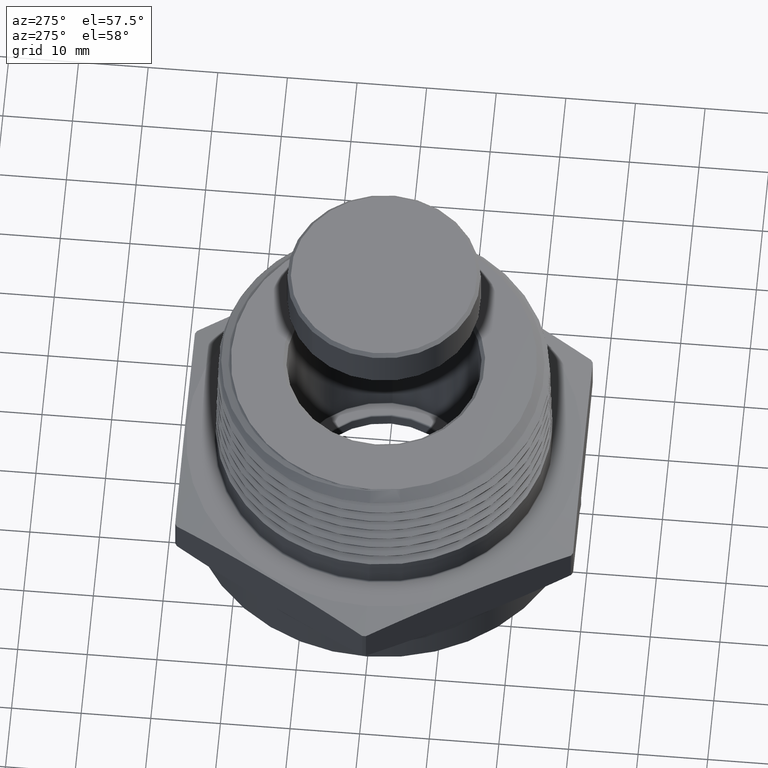
[diagram: clean part render]
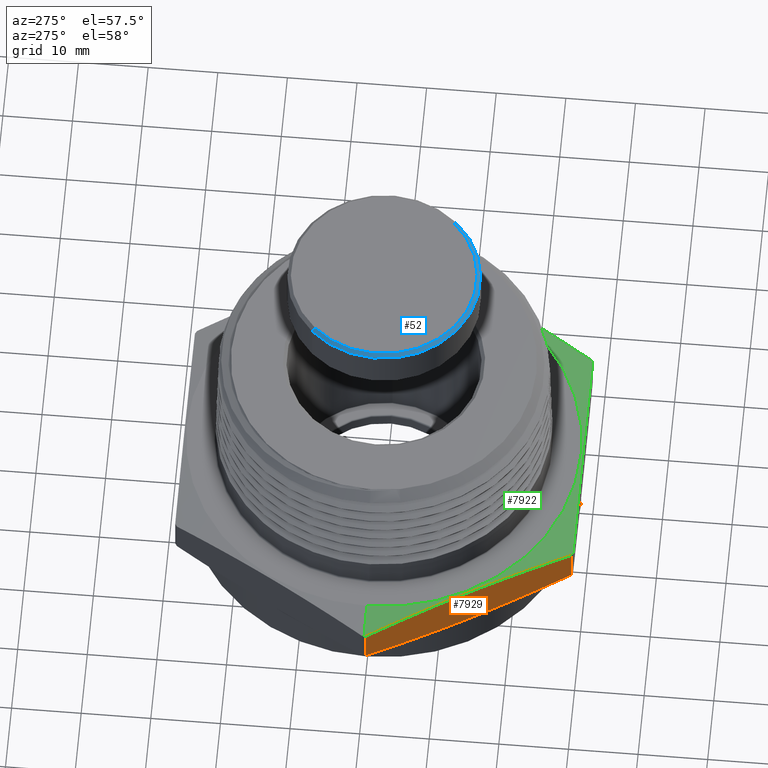
[diagram: same view with three faces highlighted in distinct colors, each labeled with its STEP entity id]
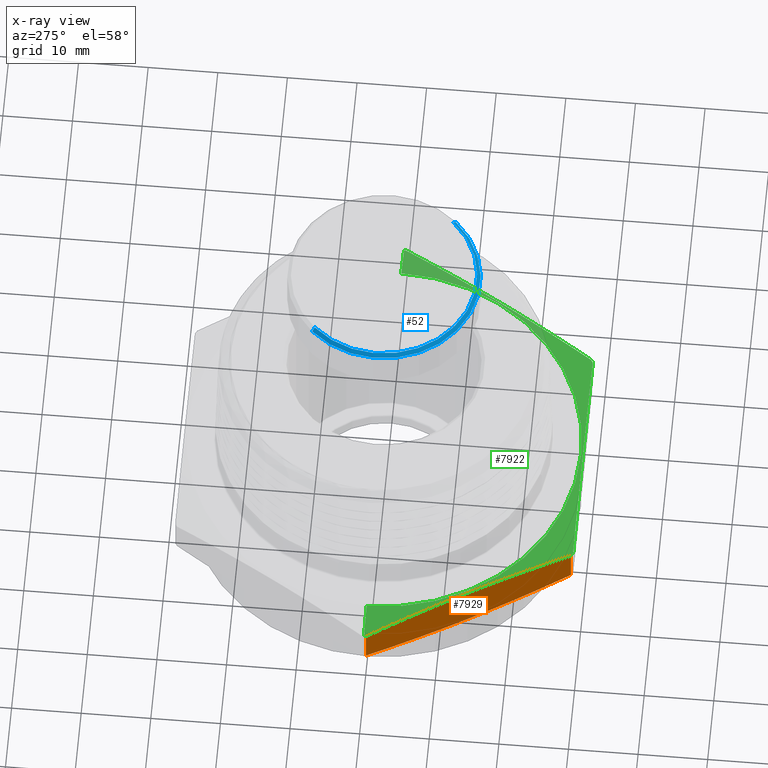
[diagram: x-ray of the same camera — body ghosted, the three highlighted faces saturated]
A machine part, auxiliary view with three faces highlighted in distinct colors.
The next image is the same camera in x-ray (body ghosted, the three faces saturated) — at least one of them is partly hidden behind the body in this view.
Their STEP definitions:

[orange] entity #7929 — the highlighted planar face has unit normal (0.866, 0.5, 0).
#376 = CARTESIAN_POINT ( 'NONE',  ( -1.292995751187356900, -0.01046566497281132100, 0.03784316758887328000 ) ) ;
#416 = CARTESIAN_POINT ( 'NONE',  ( -0.6555614073276290200, -1.114534335027189200, 0.2421568324111266500 ) ) ;
#428 = CARTESIAN_POINT ( 'NONE',  ( -0.6555614073276290200, -1.114534335027189200, 0.03784316758887319700 ) ) ;
#805 = CARTESIAN_POINT ( 'NONE',  ( -1.292995751187356900, -0.01046566497281132100, 3.999857633734064600E-017 ) ) ;
#806 = DIRECTION ( 'NONE',  ( -1.254986547952384500E-016, -0.0000000000000000000, -1.000000000000000000 ) ) ;
#881 = DIRECTION ( 'NONE',  ( 1.254986547952384500E-016, 0.0000000000000000000, 1.000000000000000000 ) ) ;
#891 = CARTESIAN_POINT ( 'NONE',  ( -0.6555614073276290200, -1.114534335027189200, -3.999857633734064600E-017 ) ) ;
#1332 = CARTESIAN_POINT ( 'NONE',  ( -1.292995751187356900, -0.01046566497281132100, 0.2421568324111267600 ) ) ;
#1706 = FACE_OUTER_BOUND ( 'NONE', #7828, .T. ) ;
#1735 = AXIS2_PLACEMENT_3D ( 'NONE', #3661, #3666, #3667 ) ;
#2175 = VERTEX_POINT ( 'NONE', #376 ) ;
#2240 = VERTEX_POINT ( 'NONE', #416 ) ;
#2254 = VERTEX_POINT ( 'NONE', #428 ) ;
#2307 = B_SPLINE_CURVE_WITH_KNOTS ( 'NONE', 3,
 ( #6096, #6095, #6105, #6106, #6107, #6108, #6109, #6110, #6111 ),
 .UNSPECIFIED., .F., .F.,
 ( 4, 2, 1, 2, 4 ),
 ( 1.908587031545657200E-006, 0.008097324754050078800, 0.01619274092106861400, 0.02428815708808715300, 0.03238357325510569200 ),
 .UNSPECIFIED. ) ;
#2313 = B_SPLINE_CURVE_WITH_KNOTS ( 'NONE', 3,
 ( #5993, #5992, #6061, #6062, #6063, #6064, #6065, #6066, #6067 ),
 .UNSPECIFIED., .F., .F.,
 ( 4, 2, 1, 2, 4 ),
 ( 1.908587031486616500E-006, 0.008097324754050025000, 0.01619274092106856600, 0.02428815708808710500, 0.03238357325510564400 ),
 .UNSPECIFIED. ) ;
#3660 = PLANE ( 'NONE',  #1735 ) ;
#3661 = CARTESIAN_POINT ( 'NONE',  ( -1.299038105676658200, 0.0000000000000000000, 0.2800000000000000300 ) ) ;
#3666 = DIRECTION ( 'NONE',  ( 0.8660254037844384900, 0.5000000000000003300, -0.0000000000000000000 ) ) ;
#3667 = DIRECTION ( 'NONE',  ( -0.5000000000000003300, 0.8660254037844384900, 0.0000000000000000000 ) ) ;
#5752 = EDGE_CURVE ( 'NONE', #5835, #2175, #7568, .T. ) ;
#5780 = EDGE_CURVE ( 'NONE', #2240, #5835, #2313, .T. ) ;
#5785 = EDGE_CURVE ( 'NONE', #2175, #2254, #2307, .T. ) ;
#5801 = EDGE_CURVE ( 'NONE', #2254, #2240, #7602, .T. ) ;
#5835 = VERTEX_POINT ( 'NONE', #1332 ) ;
#5875 = ORIENTED_EDGE ( 'NONE', *, *, #5785, .T. ) ;
#5876 = ORIENTED_EDGE ( 'NONE', *, *, #5801, .T. ) ;
#5877 = ORIENTED_EDGE ( 'NONE', *, *, #5780, .T. ) ;
#5878 = ORIENTED_EDGE ( 'NONE', *, *, #5752, .T. ) ;
#5992 = CARTESIAN_POINT ( 'NONE',  ( -0.7086809359826065100, -1.022528612522657800, 0.2532890800781962800 ) ) ;
#5993 = CARTESIAN_POINT ( 'NONE',  ( -0.6555614073276290200, -1.114534335027189200, 0.2421568324111266500 ) ) ;
#6061 = CARTESIAN_POINT ( 'NONE',  ( -0.7618004646375840000, -0.9305228900181264900, 0.2623080740063900600 ) ) ;
#6062 = CARTESIAN_POINT ( 'NONE',  ( -0.8680395219475387500, -0.7465114450090631900, 0.2746186185401575100 ) ) ;
#6063 = CARTESIAN_POINT ( 'NONE',  ( -0.9742785792574926200, -0.5625000000000003300, 0.2811302502264421100 ) ) ;
#6064 = CARTESIAN_POINT ( 'NONE',  ( -1.080517636567448300, -0.3784885549909369800, 0.2746186185401575700 ) ) ;
#6065 = CARTESIAN_POINT ( 'NONE',  ( -1.186756693877403000, -0.1944771099818740100, 0.2623080740063900000 ) ) ;
#6066 = CARTESIAN_POINT ( 'NONE',  ( -1.239876222532380100, -0.1024713874773425200, 0.2532890800781962800 ) ) ;
#6067 = CARTESIAN_POINT ( 'NONE',  ( -1.292995751187356900, -0.01046566497281132100, 0.2421568324111267600 ) ) ;
#6095 = CARTESIAN_POINT ( 'NONE',  ( -1.239876222532379800, -0.1024713874773428400, 0.02671091992180369600 ) ) ;
#6096 = CARTESIAN_POINT ( 'NONE',  ( -1.292995751187356900, -0.01046566497281132100, 0.03784316758887328000 ) ) ;
#6105 = CARTESIAN_POINT ( 'NONE',  ( -1.186756693877402300, -0.1944771099818743400, 0.01769192599360993500 ) ) ;
#6106 = CARTESIAN_POINT ( 'NONE',  ( -1.080517636567447800, -0.3784885549909373600, 0.005381381459842304200 ) ) ;
#6107 = CARTESIAN_POINT ( 'NONE',  ( -0.9742785792574928400, -0.5625000000000007800, -0.001130250226442187900 ) ) ;
#6108 = CARTESIAN_POINT ( 'NONE',  ( -0.8680395219475390800, -0.7465114450090631900, 0.005381381459842257300 ) ) ;
#6109 = CARTESIAN_POINT ( 'NONE',  ( -0.7618004646375838900, -0.9305228900181264900, 0.01769192599360985500 ) ) ;
#6110 = CARTESIAN_POINT ( 'NONE',  ( -0.7086809359826066200, -1.022528612522657600, 0.02671091992180360900 ) ) ;
#6111 = CARTESIAN_POINT ( 'NONE',  ( -0.6555614073276290200, -1.114534335027189200, 0.03784316758887319700 ) ) ;
#7568 = LINE ( 'NONE', #805, #7570 ) ;
#7570 = VECTOR ( 'NONE', #806, 39.37007874015748100 ) ;
#7602 = LINE ( 'NONE', #891, #7609 ) ;
#7609 = VECTOR ( 'NONE', #881, 39.37007874015748100 ) ;
#7828 = EDGE_LOOP ( 'NONE', ( #5875, #5876, #5877, #5878 ) ) ;
#7929 = ADVANCED_FACE ( 'NONE', ( #1706 ), #3660, .F. ) ;

[blue] entity #52 — the highlighted conical surface has half-angle 45 deg.
#52 = ADVANCED_FACE ( 'NONE', ( #7757 ), #7770, .T. ) ;
#70 = AXIS2_PLACEMENT_3D ( 'NONE', #6919, #6920, #6918 ) ;
#344 = CARTESIAN_POINT ( 'NONE',  ( -0.4283199460621153800, -0.1164497935006343900, 0.2555905511811028500 ) ) ;
#345 = CARTESIAN_POINT ( 'NONE',  ( 0.6616800539378852000, -0.1164497935006343200, 0.2555905511811028500 ) ) ;
#358 = CARTESIAN_POINT ( 'NONE',  ( -0.4083199460621157500, -0.1164497935006343900, 0.2755905511811023200 ) ) ;
#359 = CARTESIAN_POINT ( 'NONE',  ( 0.6416800539378857400, -0.1164497935006343200, 0.2755905511811023200 ) ) ;
#1270 = DIRECTION ( 'NONE',  ( -0.7071067811865500200, 0.0000000000000000000, -0.7071067811865449100 ) ) ;
#1353 = CARTESIAN_POINT ( 'NONE',  ( -0.4083199460621178000, -0.1164497935006343900, 0.2755905511811023200 ) ) ;
#1365 = CARTESIAN_POINT ( 'NONE',  ( 0.1166800539378849700, -0.1164497935006343900, 0.2555905511811028500 ) ) ;
#1366 = DIRECTION ( 'NONE',  ( -0.0000000000000000000, -0.0000000000000000000, -1.000000000000000000 ) ) ;
#1367 = DIRECTION ( 'NONE',  ( 1.000000000000000000, 0.0000000000000000000, 0.0000000000000000000 ) ) ;
#1375 = CARTESIAN_POINT ( 'NONE',  ( 0.1166800539378849700, -0.1164497935006343900, 0.2755905511811023200 ) ) ;
#1376 = DIRECTION ( 'NONE',  ( 0.0000000000000000000, 0.0000000000000000000, 1.000000000000000000 ) ) ;
#1377 = DIRECTION ( 'NONE',  ( 1.000000000000000000, 0.0000000000000000000, 0.0000000000000000000 ) ) ;
#1639 = LINE ( 'NONE', #3552, #1642 ) ;
#1642 = VECTOR ( 'NONE', #3554, 39.37007874015748100 ) ;
#2148 = VERTEX_POINT ( 'NONE', #345 ) ;
#2150 = VERTEX_POINT ( 'NONE', #344 ) ;
#2157 = VERTEX_POINT ( 'NONE', #358 ) ;
#2158 = VERTEX_POINT ( 'NONE', #359 ) ;
#2274 = ORIENTED_EDGE ( 'NONE', *, *, #6233, .F. ) ;
#2275 = ORIENTED_EDGE ( 'NONE', *, *, #6195, .F. ) ;
#2276 = ORIENTED_EDGE ( 'NONE', *, *, #6178, .T. ) ;
#2277 = ORIENTED_EDGE ( 'NONE', *, *, #6190, .F. ) ;
#3013 = AXIS2_PLACEMENT_3D ( 'NONE', #1365, #1366, #1367 ) ;
#3015 = AXIS2_PLACEMENT_3D ( 'NONE', #1375, #1376, #1377 ) ;
#3552 = CARTESIAN_POINT ( 'NONE',  ( 0.6416800539378877400, -0.1164497935006343200, 0.2755905511811023200 ) ) ;
#3554 = DIRECTION ( 'NONE',  ( 0.7071067811865500200, 8.659560562354964900E-017, -0.7071067811865449100 ) ) ;
#6178 = EDGE_CURVE ( 'NONE', #2157, #2150, #7640, .T. ) ;
#6190 = EDGE_CURVE ( 'NONE', #2148, #2150, #7644, .T. ) ;
#6195 = EDGE_CURVE ( 'NONE', #2157, #2158, #7793, .T. ) ;
#6233 = EDGE_CURVE ( 'NONE', #2158, #2148, #1639, .T. ) ;
#6918 = DIRECTION ( 'NONE',  ( -1.000000000000000000, 0.0000000000000000000, 0.0000000000000000000 ) ) ;
#6919 = CARTESIAN_POINT ( 'NONE',  ( 0.1166800539378849700, -0.1164497935006343900, 0.2755905511811023200 ) ) ;
#6920 = DIRECTION ( 'NONE',  ( 0.0000000000000000000, 0.0000000000000000000, -1.000000000000000000 ) ) ;
#7441 = EDGE_LOOP ( 'NONE', ( #2274, #2275, #2276, #2277 ) ) ;
#7640 = LINE ( 'NONE', #1353, #7642 ) ;
#7642 = VECTOR ( 'NONE', #1270, 39.37007874015748100 ) ;
#7644 = CIRCLE ( 'NONE', #3013, 0.5450000000000024800 ) ;
#7757 = FACE_OUTER_BOUND ( 'NONE', #7441, .T. ) ;
#7770 = CONICAL_SURFACE ( 'NONE', #70, 0.5250000000000028000, 0.7853981633974499400 ) ;
#7793 = CIRCLE ( 'NONE', #3015, 0.5250000000000028000 ) ;

[green] entity #7922 — the highlighted conical surface has half-angle 78 deg.
#104 = AXIS2_PLACEMENT_3D ( 'NONE', #808, #809, #810 ) ;
#120 = AXIS2_PLACEMENT_3D ( 'NONE', #892, #893, #894 ) ;
#299 = DIRECTION ( 'NONE',  ( 0.9781476007338069100, 1.197885328332319900E-016, -0.2079116908177530700 ) ) ;
#300 = CARTESIAN_POINT ( 'NONE',  ( 1.114999999999999800, 1.365481181049298600E-016, 0.2799999999999997500 ) ) ;
#378 = CARTESIAN_POINT ( 'NONE',  ( -1.293038105676658000, 0.0000000000000000000, 0.2421568324111267600 ) ) ;
#385 = CARTESIAN_POINT ( 'NONE',  ( 1.114999999999999800, 1.365481181049298600E-016, 0.2799999999999997500 ) ) ;
#416 = CARTESIAN_POINT ( 'NONE',  ( -0.6555614073276290200, -1.114534335027189200, 0.2421568324111266500 ) ) ;
#418 = CARTESIAN_POINT ( 'NONE',  ( 0.6555614073276293500, -1.114534335027189000, 0.2421568324111265100 ) ) ;
#423 = CARTESIAN_POINT ( 'NONE',  ( 0.6374343438597275300, -1.124999999999999600, 0.2421568324111265100 ) ) ;
#426 = CARTESIAN_POINT ( 'NONE',  ( -0.6374343438597266400, -1.124999999999999800, 0.2421568324111266500 ) ) ;
#427 = CARTESIAN_POINT ( 'NONE',  ( 1.292995751187356900, -0.01046566497280974900, 0.2421568324111264000 ) ) ;
#802 = CARTESIAN_POINT ( 'NONE',  ( -1.114999999999999800, 0.0000000000000000000, 0.2800000000000000300 ) ) ;
#804 = DIRECTION ( 'NONE',  ( -0.9781476007338069100, 0.0000000000000000000, -0.2079116908177528500 ) ) ;
#808 = CARTESIAN_POINT ( 'NONE',  ( 3.039035671707238500E-017, 0.0000000000000000000, 0.2421568324111265700 ) ) ;
#809 = DIRECTION ( 'NONE',  ( -1.254986547952384500E-016, -0.0000000000000000000, -1.000000000000000000 ) ) ;
#810 = DIRECTION ( 'NONE',  ( -1.000000000000000000, 0.0000000000000000000, 1.320459921903589100E-016 ) ) ;
#892 = CARTESIAN_POINT ( 'NONE',  ( 3.039035671707238500E-017, 0.0000000000000000000, 0.2421568324111265700 ) ) ;
#893 = DIRECTION ( 'NONE',  ( -1.254986547952384500E-016, -0.0000000000000000000, -1.000000000000000000 ) ) ;
#894 = DIRECTION ( 'NONE',  ( -1.000000000000000000, 0.0000000000000000000, 1.320459921903589100E-016 ) ) ;
#904 = CARTESIAN_POINT ( 'NONE',  ( 3.039035671707238500E-017, 0.0000000000000000000, 0.2421568324111265700 ) ) ;
#905 = DIRECTION ( 'NONE',  ( -1.254986547952384500E-016, -0.0000000000000000000, -1.000000000000000000 ) ) ;
#906 = DIRECTION ( 'NONE',  ( -1.000000000000000000, 0.0000000000000000000, 1.320459921903589100E-016 ) ) ;
#911 = CARTESIAN_POINT ( 'NONE',  ( 3.039035671707238500E-017, 0.0000000000000000000, 0.2421568324111265700 ) ) ;
#912 = DIRECTION ( 'NONE',  ( -1.254986547952384500E-016, -0.0000000000000000000, -1.000000000000000000 ) ) ;
#913 = DIRECTION ( 'NONE',  ( -1.000000000000000000, 0.0000000000000000000, 1.320459921903589100E-016 ) ) ;
#1143 = CARTESIAN_POINT ( 'NONE',  ( 3.513962334266675000E-017, 0.0000000000000000000, 0.2799999999999998600 ) ) ;
#1144 = DIRECTION ( 'NONE',  ( -1.254986547952384500E-016, -0.0000000000000000000, -1.000000000000000000 ) ) ;
#1146 = DIRECTION ( 'NONE',  ( -1.000000000000000000, 0.0000000000000000000, 1.225043943347203600E-016 ) ) ;
#1244 = ORIENTED_EDGE ( 'NONE', *, *, #1528, .F. ) ;
#1246 = ORIENTED_EDGE ( 'NONE', *, *, #5826, .T. ) ;
#1249 = ORIENTED_EDGE ( 'NONE', *, *, #5748, .T. ) ;
#1251 = ORIENTED_EDGE ( 'NONE', *, *, #5749, .F. ) ;
#1253 = ORIENTED_EDGE ( 'NONE', *, *, #5780, .F. ) ;
#1255 = ORIENTED_EDGE ( 'NONE', *, *, #5800, .F. ) ;
#1257 = ORIENTED_EDGE ( 'NONE', *, *, #5781, .F. ) ;
#1259 = ORIENTED_EDGE ( 'NONE', *, *, #5805, .F. ) ;
#1262 = ORIENTED_EDGE ( 'NONE', *, *, #5782, .F. ) ;
#1264 = ORIENTED_EDGE ( 'NONE', *, *, #5808, .F. ) ;
#1269 = CARTESIAN_POINT ( 'NONE',  ( 1.293038105676658000, 1.583514977292476400E-016, 0.2421568324111264000 ) ) ;
#1332 = CARTESIAN_POINT ( 'NONE',  ( -1.292995751187356900, -0.01046566497281132100, 0.2421568324111267600 ) ) ;
#1338 = CARTESIAN_POINT ( 'NONE',  ( -1.114999999999999800, 0.0000000000000000000, 0.2800000000000000300 ) ) ;
#1528 = EDGE_CURVE ( 'NONE', #2184, #5836, #7523, .T. ) ;
#1695 = FACE_OUTER_BOUND ( 'NONE', #7821, .T. ) ;
#1702 = CONICAL_SURFACE ( 'NONE', #3037, 1.114999999999999800, 1.361356816555583600 ) ;
#2177 = VERTEX_POINT ( 'NONE', #378 ) ;
#2184 = VERTEX_POINT ( 'NONE', #385 ) ;
#2240 = VERTEX_POINT ( 'NONE', #416 ) ;
#2243 = VERTEX_POINT ( 'NONE', #418 ) ;
#2249 = VERTEX_POINT ( 'NONE', #423 ) ;
#2252 = VERTEX_POINT ( 'NONE', #426 ) ;
#2253 = VERTEX_POINT ( 'NONE', #427 ) ;
#2311 = B_SPLINE_CURVE_WITH_KNOTS ( 'NONE', 3,
 ( #6059, #6069, #6079, #6080, #6081, #6082, #6083, #6084, #6085 ),
 .UNSPECIFIED., .F., .F.,
 ( 4, 2, 1, 2, 4 ),
 ( 1.908587031475776200E-006, 0.008097324754050019800, 0.01619274092106856600, 0.02428815708808710800, 0.03238357325510565100 ),
 .UNSPECIFIED. ) ;
#2312 = B_SPLINE_CURVE_WITH_KNOTS ( 'NONE', 3,
 ( #6058, #6060, #6070, #6071, #6072, #6073, #6074, #6075, #6076, #6077 ),
 .UNSPECIFIED., .F., .F.,
 ( 4, 2, 2, 2, 4 ),
 ( 0.06266755591143607900, 0.07078732428279715900, 0.07890709265415825300, 0.08702686102551933400, 0.09514662939688041400 ),
 .UNSPECIFIED. ) ;
#2313 = B_SPLINE_CURVE_WITH_KNOTS ( 'NONE', 3,
 ( #5993, #5992, #6061, #6062, #6063, #6064, #6065, #6066, #6067 ),
 .UNSPECIFIED., .F., .F.,
 ( 4, 2, 1, 2, 4 ),
 ( 1.908587031486616500E-006, 0.008097324754050025000, 0.01619274092106856600, 0.02428815708808710500, 0.03238357325510564400 ),
 .UNSPECIFIED. ) ;
#3000 = AXIS2_PLACEMENT_3D ( 'NONE', #904, #905, #906 ) ;
#3001 = AXIS2_PLACEMENT_3D ( 'NONE', #911, #912, #913 ) ;
#3007 = AXIS2_PLACEMENT_3D ( 'NONE', #1143, #1144, #1146 ) ;
#3037 = AXIS2_PLACEMENT_3D ( 'NONE', #3637, #3638, #3636 ) ;
#3636 = DIRECTION ( 'NONE',  ( -1.000000000000000000, 0.0000000000000000000, 1.225043943347203600E-016 ) ) ;
#3637 = CARTESIAN_POINT ( 'NONE',  ( 3.513962334266675000E-017, 0.0000000000000000000, 0.2799999999999998600 ) ) ;
#3638 = DIRECTION ( 'NONE',  ( -1.254986547952384500E-016, -0.0000000000000000000, -1.000000000000000000 ) ) ;
#5748 = EDGE_CURVE ( 'NONE', #5842, #2177, #7553, .T. ) ;
#5749 = EDGE_CURVE ( 'NONE', #5835, #2177, #7563, .T. ) ;
#5780 = EDGE_CURVE ( 'NONE', #2240, #5835, #2313, .T. ) ;
#5781 = EDGE_CURVE ( 'NONE', #2249, #2252, #2312, .T. ) ;
#5782 = EDGE_CURVE ( 'NONE', #2253, #2243, #2311, .T. ) ;
#5800 = EDGE_CURVE ( 'NONE', #2252, #2240, #7605, .T. ) ;
#5805 = EDGE_CURVE ( 'NONE', #2243, #2249, #7613, .T. ) ;
#5808 = EDGE_CURVE ( 'NONE', #5836, #2253, #7618, .T. ) ;
#5826 = EDGE_CURVE ( 'NONE', #2184, #5842, #7635, .T. ) ;
#5835 = VERTEX_POINT ( 'NONE', #1332 ) ;
#5836 = VERTEX_POINT ( 'NONE', #1269 ) ;
#5842 = VERTEX_POINT ( 'NONE', #1338 ) ;
#5992 = CARTESIAN_POINT ( 'NONE',  ( -0.7086809359826065100, -1.022528612522657800, 0.2532890800781962800 ) ) ;
#5993 = CARTESIAN_POINT ( 'NONE',  ( -0.6555614073276290200, -1.114534335027189200, 0.2421568324111266500 ) ) ;
#6058 = CARTESIAN_POINT ( 'NONE',  ( 0.6374343438597275300, -1.124999999999999600, 0.2421568324111265100 ) ) ;
#6059 = CARTESIAN_POINT ( 'NONE',  ( 1.292995751187356900, -0.01046566497280974900, 0.2421568324111264000 ) ) ;
#6060 = CARTESIAN_POINT ( 'NONE',  ( 0.5314230091790962400, -1.124999999999999600, 0.2532652181881040500 ) ) ;
#6061 = CARTESIAN_POINT ( 'NONE',  ( -0.7618004646375840000, -0.9305228900181264900, 0.2623080740063900600 ) ) ;
#6062 = CARTESIAN_POINT ( 'NONE',  ( -0.8680395219475387500, -0.7465114450090631900, 0.2746186185401575100 ) ) ;
#6063 = CARTESIAN_POINT ( 'NONE',  ( -0.9742785792574926200, -0.5625000000000003300, 0.2811302502264421100 ) ) ;
#6064 = CARTESIAN_POINT ( 'NONE',  ( -1.080517636567448300, -0.3784885549909369800, 0.2746186185401575700 ) ) ;
#6065 = CARTESIAN_POINT ( 'NONE',  ( -1.186756693877403000, -0.1944771099818740100, 0.2623080740063900000 ) ) ;
#6066 = CARTESIAN_POINT ( 'NONE',  ( -1.239876222532380100, -0.1024713874773425200, 0.2532890800781962800 ) ) ;
#6067 = CARTESIAN_POINT ( 'NONE',  ( -1.292995751187356900, -0.01046566497281132100, 0.2421568324111267600 ) ) ;
#6069 = CARTESIAN_POINT ( 'NONE',  ( 1.239876222532379200, -0.1024713874773413200, 0.2532890800781960600 ) ) ;
#6070 = CARTESIAN_POINT ( 'NONE',  ( 0.4253646002358992300, -1.124999999999999800, 0.2622750160077574300 ) ) ;
#6071 = CARTESIAN_POINT ( 'NONE',  ( 0.2131198376507328900, -1.124999999999999600, 0.2745907898682853900 ) ) ;
#6072 = CARTESIAN_POINT ( 'NONE',  ( 0.1069326792767560900, -1.124999999999999600, 0.2778608906599504500 ) ) ;
#6073 = CARTESIAN_POINT ( 'NONE',  ( -0.1055877376458499700, -1.124999999999999600, 0.2778878926651544000 ) ) ;
#6074 = CARTESIAN_POINT ( 'NONE',  ( -0.2119210193021710000, -1.124999999999999800, 0.2746437637292745100 ) ) ;
#6075 = CARTESIAN_POINT ( 'NONE',  ( -0.4247182800637241400, -1.124999999999999600, 0.2623289654639876000 ) ) ;
#6076 = CARTESIAN_POINT ( 'NONE',  ( -0.5312776201662973200, -1.124999999999999600, 0.2532804527594521600 ) ) ;
#6077 = CARTESIAN_POINT ( 'NONE',  ( -0.6374343438597266400, -1.124999999999999800, 0.2421568324111266500 ) ) ;
#6079 = CARTESIAN_POINT ( 'NONE',  ( 1.186756693877402100, -0.1944771099818730400, 0.2623080740063898400 ) ) ;
#6080 = CARTESIAN_POINT ( 'NONE',  ( 1.080517636567447400, -0.3784885549909361400, 0.2746186185401574000 ) ) ;
#6081 = CARTESIAN_POINT ( 'NONE',  ( 0.9742785792574926200, -0.5624999999999996700, 0.2811302502264420000 ) ) ;
#6082 = CARTESIAN_POINT ( 'NONE',  ( 0.8680395219475386400, -0.7465114450090627500, 0.2746186185401574000 ) ) ;
#6083 = CARTESIAN_POINT ( 'NONE',  ( 0.7618004646375838900, -0.9305228900181260500, 0.2623080740063898900 ) ) ;
#6084 = CARTESIAN_POINT ( 'NONE',  ( 0.7086809359826066200, -1.022528612522657600, 0.2532890800781961200 ) ) ;
#6085 = CARTESIAN_POINT ( 'NONE',  ( 0.6555614073276293500, -1.114534335027189000, 0.2421568324111265100 ) ) ;
#7523 = LINE ( 'NONE', #300, #7529 ) ;
#7529 = VECTOR ( 'NONE', #299, 39.37007874015748100 ) ;
#7553 = LINE ( 'NONE', #802, #7562 ) ;
#7562 = VECTOR ( 'NONE', #804, 39.37007874015748100 ) ;
#7563 = CIRCLE ( 'NONE', #104, 1.293038105676658000 ) ;
#7605 = CIRCLE ( 'NONE', #120, 1.293038105676658000 ) ;
#7613 = CIRCLE ( 'NONE', #3000, 1.293038105676658000 ) ;
#7618 = CIRCLE ( 'NONE', #3001, 1.293038105676658000 ) ;
#7635 = CIRCLE ( 'NONE', #3007, 1.114999999999999800 ) ;
#7821 = EDGE_LOOP ( 'NONE', ( #1244, #1246, #1249, #1251, #1253, #1255, #1257, #1259, #1262, #1264 ) ) ;
#7922 = ADVANCED_FACE ( 'NONE', ( #1695 ), #1702, .T. ) ;